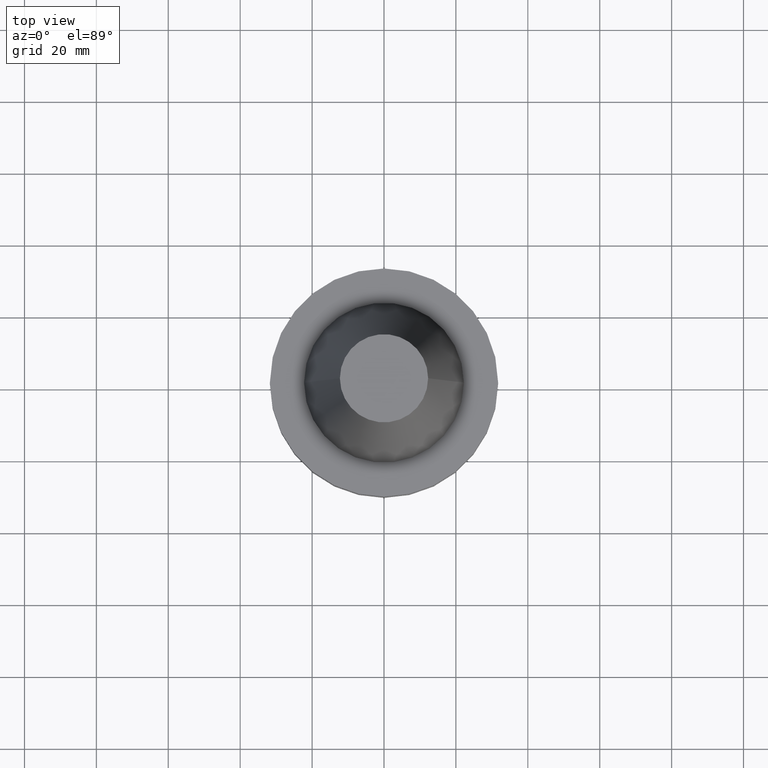
[diagram: clean part render]
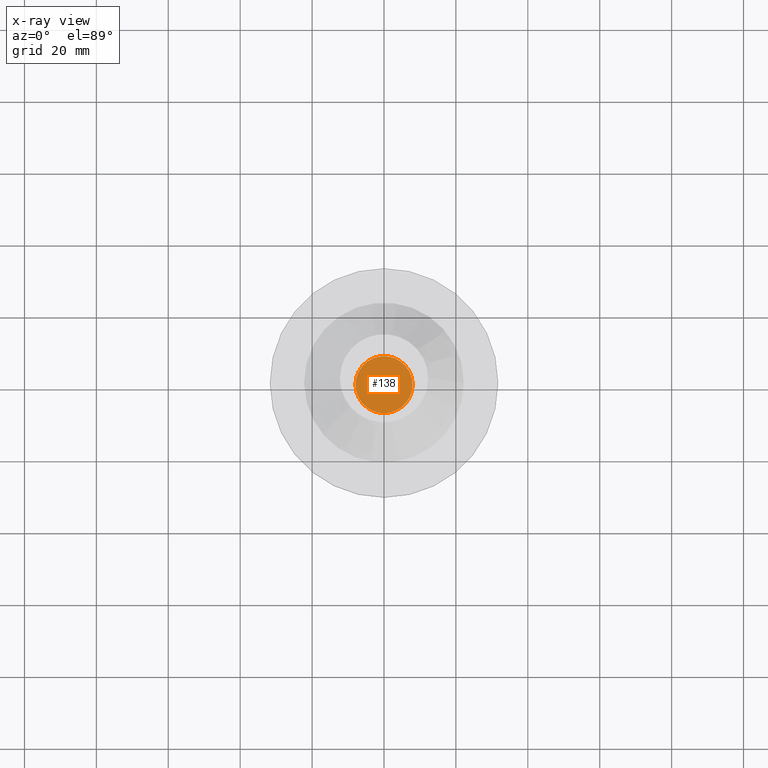
[diagram: x-ray — body ghosted, one internal face saturated and labeled with its STEP entity id]
A machine part, top view, then the same camera in x-ray: the body is ghosted and one INTERNAL B-rep face — a face not visible from any outside direction — is saturated and labeled: STEP entity #138.
In plain terms, the highlighted planar face has unit normal (0, -0, 1).
Its self-contained STEP definition (entity closure, byte-faithful):
#55 = CIRCLE ( 'NONE', #567, 7.939999999999999503 ) ;
#62 = EDGE_CURVE ( 'NONE', #475, #642, #55, .T. ) ;
#63 = DIRECTION ( 'NONE',  ( 0.000000000000000000, -0.000000000000000000, 1.000000000000000000 ) ) ;
#138 = ADVANCED_FACE ( 'NONE', ( #389 ), #709, .F. ) ;
#141 = CARTESIAN_POINT ( 'NONE',  ( -7.939999999999999503, 9.723695585229985121E-16, -35.04999999999999716 ) ) ;
#155 = CARTESIAN_POINT ( 'NONE',  ( 7.939999999999999503, 0.000000000000000000, -35.04999999999999716 ) ) ;
#172 = ORIENTED_EDGE ( 'NONE', *, *, #657, .F. ) ;
#174 = DIRECTION ( 'NONE',  ( -0.000000000000000000, -0.000000000000000000, 1.000000000000000000 ) ) ;
#227 = EDGE_LOOP ( 'NONE', ( #172, #404 ) ) ;
#309 = CIRCLE ( 'NONE', #460, 7.939999999999999503 ) ;
#315 = DIRECTION ( 'NONE',  ( 1.000000000000000000, 0.000000000000000000, 0.000000000000000000 ) ) ;
#389 = FACE_OUTER_BOUND ( 'NONE', #227, .T. ) ;
#404 = ORIENTED_EDGE ( 'NONE', *, *, #62, .F. ) ;
#457 = DIRECTION ( 'NONE',  ( -0.000000000000000000, -0.000000000000000000, 1.000000000000000000 ) ) ;
#460 = AXIS2_PLACEMENT_3D ( 'NONE', #816, #174, #502 ) ;
#475 = VERTEX_POINT ( 'NONE', #141 ) ;
#502 = DIRECTION ( 'NONE',  ( 1.000000000000000000, 0.000000000000000000, 0.000000000000000000 ) ) ;
#539 = AXIS2_PLACEMENT_3D ( 'NONE', #659, #63, #854 ) ;
#567 = AXIS2_PLACEMENT_3D ( 'NONE', #584, #457, #315 ) ;
#584 = CARTESIAN_POINT ( 'NONE',  ( 0.000000000000000000, 0.000000000000000000, -35.04999999999999716 ) ) ;
#642 = VERTEX_POINT ( 'NONE', #155 ) ;
#657 = EDGE_CURVE ( 'NONE', #642, #475, #309, .T. ) ;
#659 = CARTESIAN_POINT ( 'NONE',  ( 0.000000000000000000, 22.22499999999999787, -35.04999999999999716 ) ) ;
#709 = PLANE ( 'NONE',  #539 ) ;
#816 = CARTESIAN_POINT ( 'NONE',  ( 0.000000000000000000, 0.000000000000000000, -35.04999999999999716 ) ) ;
#854 = DIRECTION ( 'NONE',  ( 1.000000000000000000, 0.000000000000000000, 0.000000000000000000 ) ) ;